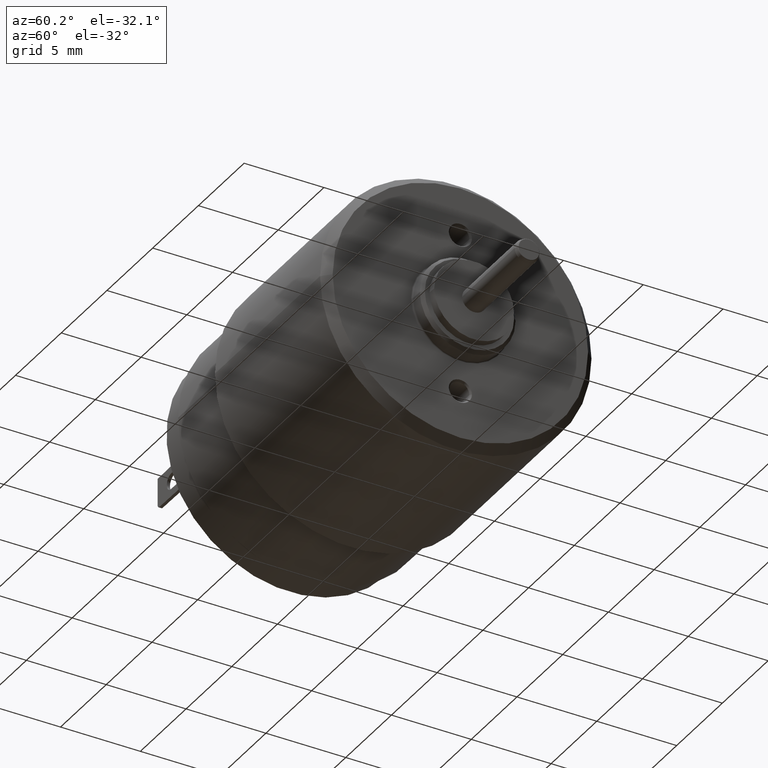
[diagram: clean part render]
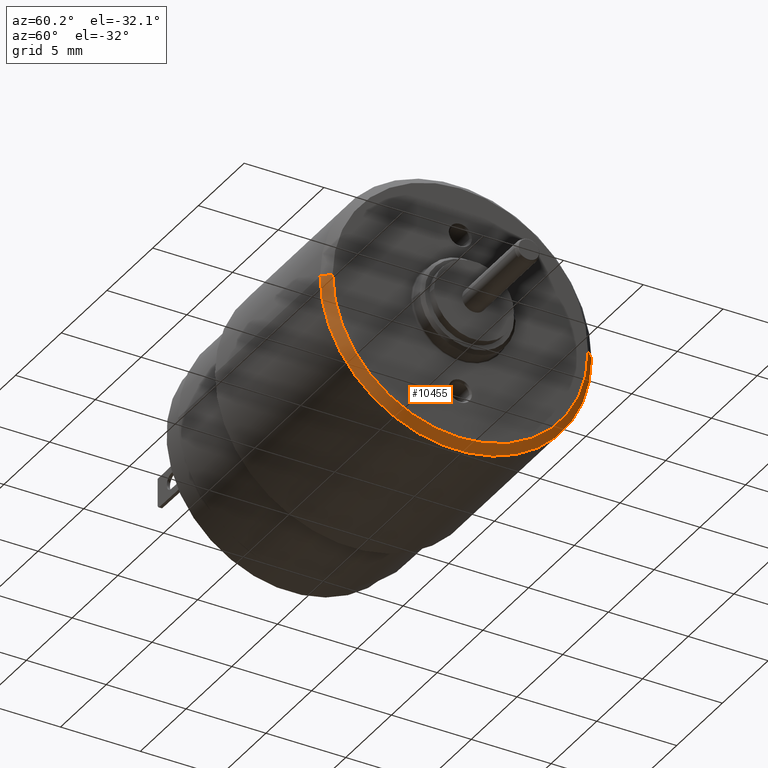
[diagram: same view with one face highlighted and labeled with its STEP entity id]
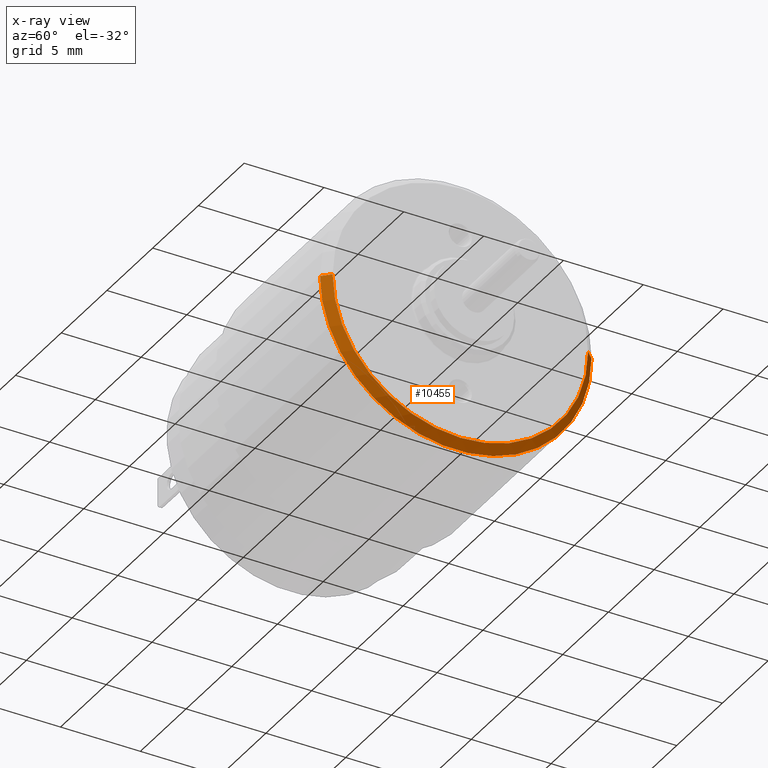
[diagram: x-ray of the same camera — body ghosted, the highlighted face saturated]
A machine part, auxiliary view. The second image highlights one B-rep face of the part: STEP entity #10455.
The next image is the same camera in x-ray: the body ghosted, the highlighted face saturated — about 0% of this face is hidden behind the body in this view.
In plain terms, the highlighted conical surface has half-angle 45 deg.
Its self-contained STEP definition (entity closure, byte-faithful):
#3531=DIRECTION('',(7.071071015239E-1,7.071064608490E-1,-1.315239844067E-10));
#3532=VECTOR('',#3531,7.071067812037E-1);
#3533=CARTESIAN_POINT('',(-4.999991113255E-1,-8.500000888580E0,
-3.648495497922E-10));
#3534=LINE('',#3533,#3532);
#3535=DIRECTION('',(7.071071015239E-1,-7.071064608490E-1,1.315230724033E-10));
#3536=VECTOR('',#3535,7.071067812037E-1);
#3537=CARTESIAN_POINT('',(-4.999991113255E-1,8.500000888580E0,
3.648509653256E-10));
#3538=LINE('',#3537,#3536);
#3539=CARTESIAN_POINT('',(-5.000012897550E-1,0.E0,0.E0));
#3540=DIRECTION('',(-1.E0,0.E0,0.E0));
#3541=DIRECTION('',(0.E0,1.E0,0.E0));
#3542=AXIS2_PLACEMENT_3D('',#3539,#3540,#3541);
#3544=CARTESIAN_POINT('',(2.273163629773E-6,1.341418268049E-14,0.E0));
#3545=DIRECTION('',(-1.E0,0.E0,0.E0));
#3546=DIRECTION('',(0.E0,1.E0,0.E0));
#3547=AXIS2_PLACEMENT_3D('',#3544,#3545,#3546);
#4368=CARTESIAN_POINT('',(-5.000012897550E-1,8.5E0,0.E0));
#4369=CARTESIAN_POINT('',(-5.000012897550E-1,-8.5E0,0.E0));
#4370=VERTEX_POINT('',#4368);
#4371=VERTEX_POINT('',#4369);
#4372=CARTESIAN_POINT('',(2.273163630753E-6,8.000001072256E0,0.E0));
#4373=CARTESIAN_POINT('',(2.273163628794E-6,-8.000001072256E0,0.E0));
#4374=VERTEX_POINT('',#4372);
#4375=VERTEX_POINT('',#4373);
#10442=CARTESIAN_POINT('',(-2.499985344372E-1,1.344479793823E-14,0.E0));
#10443=DIRECTION('',(-1.E0,0.E0,0.E0));
#10444=DIRECTION('',(0.E0,0.E0,-1.E0));
#10445=AXIS2_PLACEMENT_3D('',#10442,#10443,#10444);
#10446=CONICAL_SURFACE('',#10445,8.250001984401E0,4.500001197990E1);
#10448=ORIENTED_EDGE('',*,*,#10447,.T.);
#10449=ORIENTED_EDGE('',*,*,#10437,.T.);
#10451=ORIENTED_EDGE('',*,*,#10450,.F.);
#10452=ORIENTED_EDGE('',*,*,#10433,.F.);
#10453=EDGE_LOOP('',(#10448,#10449,#10451,#10452));
#10454=FACE_OUTER_BOUND('',#10453,.F.);
#10455=ADVANCED_FACE('',(#10454),#10446,.T.);
#3543=CIRCLE('',#3542,8.5E0);
#3548=CIRCLE('',#3547,8.000001072256E0);
#10433=EDGE_CURVE('',#4370,#4374,#3538,.T.);
#10437=EDGE_CURVE('',#4371,#4375,#3534,.T.);
#10447=EDGE_CURVE('',#4370,#4371,#3543,.T.);
#10450=EDGE_CURVE('',#4374,#4375,#3548,.T.);